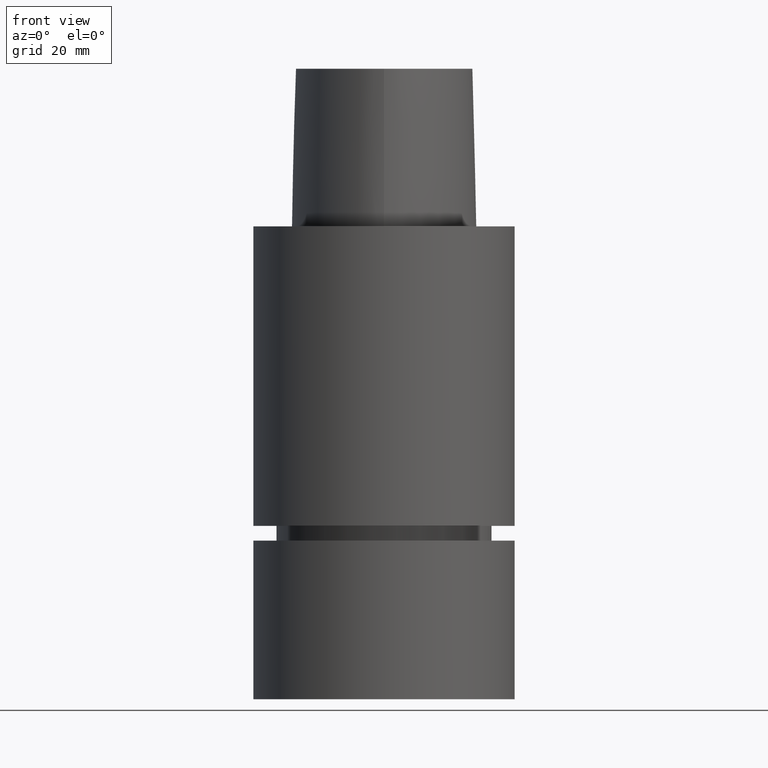
[diagram: clean part render]
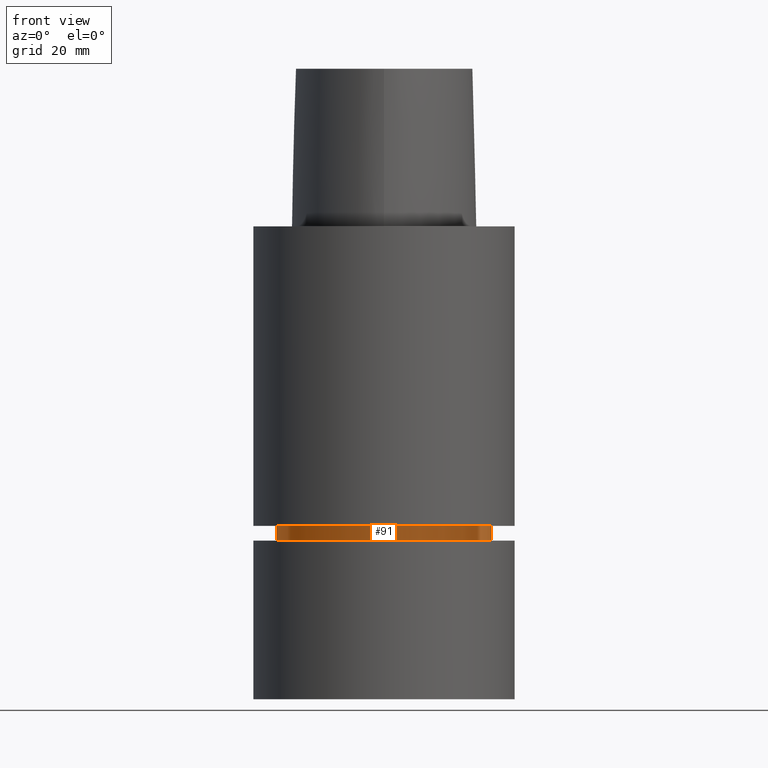
[diagram: same view with one face highlighted and labeled with its STEP entity id]
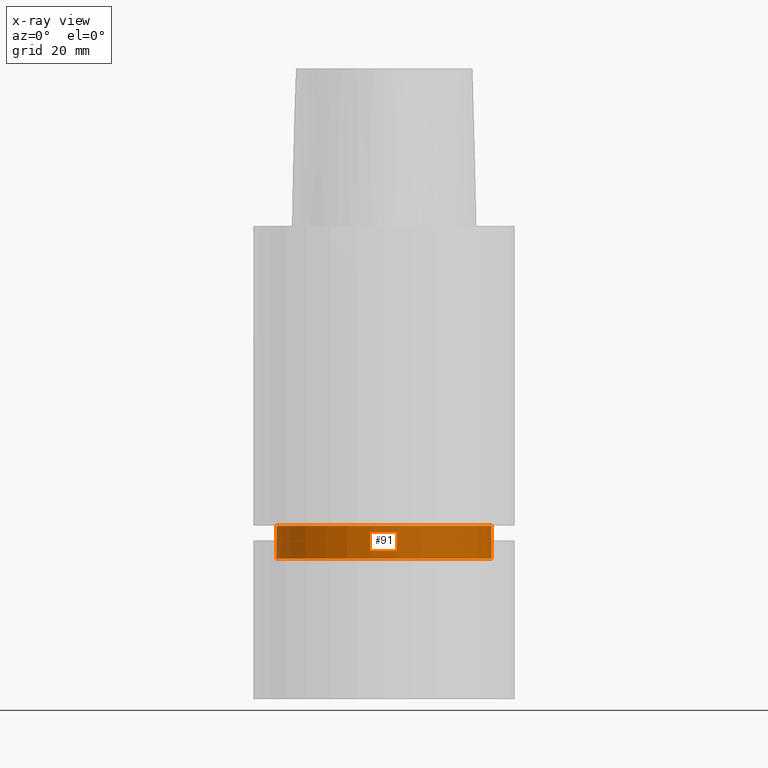
[diagram: x-ray of the same camera — body ghosted, the highlighted face saturated]
A machine part, front view. The second image highlights one B-rep face of the part: STEP entity #91.
The next image is the same camera in x-ray: the body ghosted, the highlighted face saturated — about 0% of this face is hidden behind the body in this view.
In plain terms, the highlighted cylindrical surface (bore or boss wall) has radius 20.5 mm, axis along (0, 0, -1).
Its self-contained STEP definition (entity closure, byte-faithful):
#79=EDGE_CURVE('Unnamed[1]',#177,#177,#178,.T.);
#91=ADVANCED_FACE('Unnamed[1]',(#193,#194),#195,.T.);
#109=EDGE_CURVE('Unnamed[1]',#219,#219,#220,.T.);
#177=VERTEX_POINT('',#299);
#178=CIRCLE('',#300,20.4999999999911);
#193=FACE_BOUND('',#318,.T.);
#194=FACE_BOUND('',#319,.T.);
#195=CYLINDRICAL_SURFACE('',#320,20.4999999999961);
#219=VERTEX_POINT('',#495);
#220=CIRCLE('',#496,20.5000000000012);
#299=CARTESIAN_POINT('',(3.49025302591328E-015,20.4999999999911,-57.0001575694042));
#300=AXIS2_PLACEMENT_3D('',#942,#943,#944);
#318=EDGE_LOOP('',(#958));
#319=EDGE_LOOP('',(#959));
#320=AXIS2_PLACEMENT_3D('',#960,#961,#962);
#495=CARTESIAN_POINT('',(3.87058698165691E-015,20.5000000000012,-63.211482434801));
#496=AXIS2_PLACEMENT_3D('',#983,#984,#985);
#942=CARTESIAN_POINT('',(3.49025302591328E-015,6.98050605182656E-015,-57.0001575694042));
#943=DIRECTION('',(6.12323399573677E-017,1.22464679914735E-016,-1.0));
#944=DIRECTION('',(-1.23259516440783E-032,1.0,1.22464679914735E-016));
#958=ORIENTED_EDGE('',*,*,#109,.F.);
#959=ORIENTED_EDGE('',*,*,#79,.T.);
#960=CARTESIAN_POINT('',(3.6804200037851E-015,7.36084000757019E-015,-60.1058200021026));
#961=DIRECTION('',(6.12323399573677E-017,1.22464679914735E-016,-1.0));
#962=DIRECTION('',(-1.23259516440783E-032,1.0,1.22464679914735E-016));
#983=CARTESIAN_POINT('',(3.87058698165691E-015,7.74117396331382E-015,-63.211482434801));
#984=DIRECTION('',(6.12323399573677E-017,1.22464679914735E-016,-1.0));
#985=DIRECTION('',(-1.23259516440783E-032,1.0,1.22464679914735E-016));